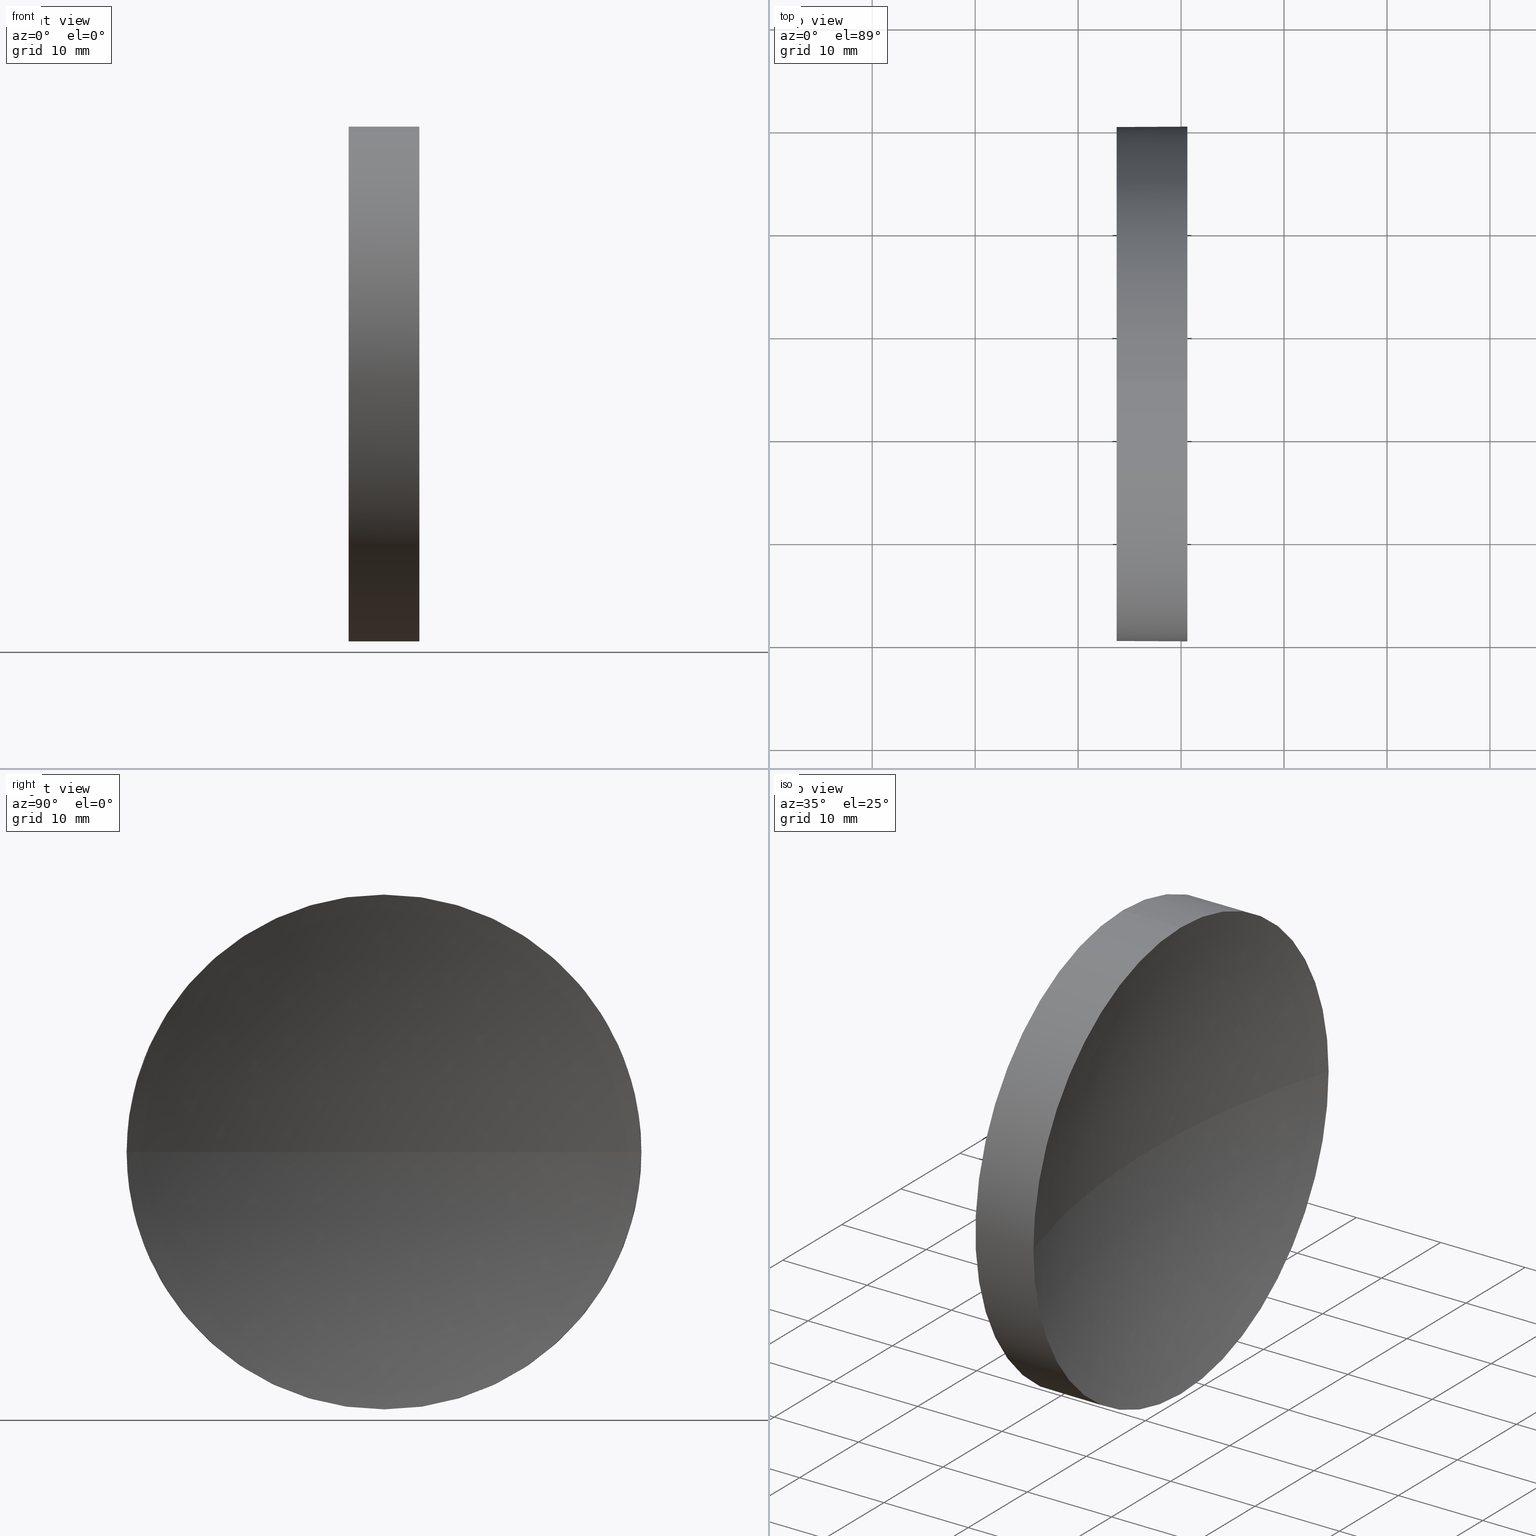
[diagram: canonical four-view strip — front | top / right | iso, engineering-drawing reading convention]
A machine part, canonical four-view strip (front | top / right | iso — engineering-drawing reading convention). The complete STEP part file that produces these views, byte-faithful:
ISO-10303-21;
HEADER;
FILE_DESCRIPTION (( 'STEP AP214' ),
    '1' );
FILE_NAME ('120057.STEP',
    '2019-06-18T01:41:22',
    ( '' ),
    ( '' ),
    'SwSTEP 2.0',
    'SolidWorks 2016',
    '' );
FILE_SCHEMA (( 'AUTOMOTIVE_DESIGN' ));
ENDSEC;

DATA;
#1 = PRODUCT_DEFINITION_CONTEXT ( 'detailed design', #56, 'design' ) ;
#2 = ORIENTED_EDGE ( 'NONE', *, *, #14, .F. ) ;
#3 = COLOUR_RGB ( '',1.000000000000000000, 1.000000000000000000, 1.000000000000000000 ) ;
#4 = EDGE_CURVE ( 'NONE', #29, #13, #57, .T. ) ;
#5 = DIRECTION ( 'NONE',  ( -1.000000000000000000, -0.0000000000000000000, -0.0000000000000000000 ) ) ;
#6 = DIRECTION ( 'NONE',  ( 0.0000000000000000000, 1.000000000000000000, 1.224646799147353000E-016 ) ) ;
#7 = DIRECTION ( 'NONE',  ( -1.000000000000000000, -0.0000000000000000000, -0.0000000000000000000 ) ) ;
#8 = MECHANICAL_DESIGN_GEOMETRIC_PRESENTATION_REPRESENTATION (  '', ( #58 ), #162 ) ;
#9 = DIRECTION ( 'NONE',  ( 0.0000000000000000000, 0.0000000000000000000, 1.000000000000000000 ) ) ;
#10 = ORIENTED_EDGE ( 'NONE', *, *, #45, .F. ) ;
#11 =( LENGTH_UNIT ( ) NAMED_UNIT ( * ) SI_UNIT ( .MILLI., .METRE. ) );
#12 =( NAMED_UNIT ( * ) SI_UNIT ( $, .STERADIAN. ) SOLID_ANGLE_UNIT ( ) );
#13 = VERTEX_POINT ( 'NONE', #123 ) ;
#14 = EDGE_CURVE ( 'NONE', #88, #55, #17, .T. ) ;
#15 = SURFACE_STYLE_FILL_AREA ( #70 ) ;
#16 = CARTESIAN_POINT ( 'NONE',  ( 113.7394371346435000, 65.15563045701519200, -24.99999999999999300 ) ) ;
#17 = LINE ( 'NONE', #110, #133 ) ;
#18 = CARTESIAN_POINT ( 'NONE',  ( 120.6125997378311500, 40.15563045701520700, -3.061616997868379500E-015 ) ) ;
#19 = CARTESIAN_POINT ( 'NONE',  ( 199.3594371346434900, 65.15563045701517800, 0.0000000000000000000 ) ) ;
#20 = VERTEX_POINT ( 'NONE', #65 ) ;
#21 = EDGE_CURVE ( 'NONE', #20, #175, #148, .T. ) ;
#22 = CARTESIAN_POINT ( 'NONE',  ( 120.6125997378311500, 90.15563045701516400, 0.0000000000000000000 ) ) ;
#23 = ADVANCED_FACE ( 'NONE', ( #129 ), #59, .F. ) ;
#24 = DIRECTION ( 'NONE',  ( -1.000000000000000000, -0.0000000000000000000, -0.0000000000000000000 ) ) ;
#25 = SHAPE_DEFINITION_REPRESENTATION ( #183, #173 ) ;
#26 = ORIENTED_EDGE ( 'NONE', *, *, #21, .F. ) ;
#27 = FILL_AREA_STYLE ('',( #100 ) ) ;
#28 = EDGE_CURVE ( 'NONE', #175, #13, #101, .T. ) ;
#29 = VERTEX_POINT ( 'NONE', #18 ) ;
#30 = AXIS2_PLACEMENT_3D ( 'NONE', #144, #126, #165 ) ;
#31 = ORIENTED_EDGE ( 'NONE', *, *, #178, .T. ) ;
#32 = AXIS2_PLACEMENT_3D ( 'NONE', #125, #33, #6 ) ;
#33 = DIRECTION ( 'NONE',  ( 0.0000000000000000000, 1.224646799147353200E-016, -1.000000000000000000 ) ) ;
#34 = CIRCLE ( 'NONE', #138, 24.99999999999999300 ) ;
#35 = EDGE_LOOP ( 'NONE', ( #137, #73, #78, #132, #105 ) ) ;
#36 = AXIS2_PLACEMENT_3D ( 'NONE', #86, #146, #49 ) ;
#37 = DIRECTION ( 'NONE',  ( -1.000000000000000000, -0.0000000000000000000, -0.0000000000000000000 ) ) ;
#38 = CARTESIAN_POINT ( 'NONE',  ( 105.6218371238301200, 65.15563045701519200, 0.0000000000000000000 ) ) ;
#39 = DIRECTION ( 'NONE',  ( 0.0000000000000000000, 0.0000000000000000000, 1.000000000000000000 ) ) ;
#40 = CARTESIAN_POINT ( 'NONE',  ( 120.6125997378311600, 65.15563045701519200, 0.0000000000000000000 ) ) ;
#41 = AXIS2_PLACEMENT_3D ( 'NONE', #113, #24, #127 ) ;
#42 = ORIENTED_EDGE ( 'NONE', *, *, #172, .F. ) ;
#43 =( GEOMETRIC_REPRESENTATION_CONTEXT ( 3 ) GLOBAL_UNCERTAINTY_ASSIGNED_CONTEXT ( ( #47 ) ) GLOBAL_UNIT_ASSIGNED_CONTEXT ( ( #130, #52, #156 ) ) REPRESENTATION_CONTEXT ( 'NONE', 'WORKASPACE' ) );
#44 = VECTOR ( 'NONE', #97, 1000.000000000000000 ) ;
#45 = EDGE_CURVE ( 'NONE', #55, #160, #121, .T. ) ;
#46 = DIRECTION ( 'NONE',  ( 0.0000000000000000000, 0.0000000000000000000, 1.000000000000000000 ) ) ;
#47 = UNCERTAINTY_MEASURE_WITH_UNIT (LENGTH_MEASURE( 1.000000000000000100E-005 ), #130, 'distance_accuracy_value', 'NONE');
#48 =( NAMED_UNIT ( * ) PLANE_ANGLE_UNIT ( ) SI_UNIT ( $, .RADIAN. ) );
#49 = DIRECTION ( 'NONE',  ( 0.0000000000000000000, 1.000000000000000000, 0.0000000000000000000 ) ) ;
#50 = CARTESIAN_POINT ( 'NONE',  ( 113.7394371346435000, 65.15563045701519200, 24.99999999999999300 ) ) ;
#51 = ORIENTED_EDGE ( 'NONE', *, *, #45, .T. ) ;
#52 =( NAMED_UNIT ( * ) PLANE_ANGLE_UNIT ( ) SI_UNIT ( $, .RADIAN. ) );
#53 = SURFACE_STYLE_USAGE ( .BOTH. , #111 ) ;
#54 = AXIS2_PLACEMENT_3D ( 'NONE', #19, #46, #108 ) ;
#55 = VERTEX_POINT ( 'NONE', #16 ) ;
#56 = APPLICATION_CONTEXT ( 'automotive_design' ) ;
#57 = CIRCLE ( 'NONE', #32, 82.62000000000001900 ) ;
#58 = STYLED_ITEM ( 'NONE', ( #90 ), #173 ) ;
#59 = SPHERICAL_SURFACE ( 'NONE', #92, 82.62000000000000500 ) ;
#60 = EDGE_CURVE ( 'NONE', #175, #88, #95, .T. ) ;
#61 = AXIS2_PLACEMENT_3D ( 'NONE', #38, #68, #39 ) ;
#62 = ORIENTED_EDGE ( 'NONE', *, *, #143, .F. ) ;
#63 = AXIS2_PLACEMENT_3D ( 'NONE', #40, #182, #87 ) ;
#64 = CLOSED_SHELL ( 'NONE', ( #164, #176, #23, #124, #141 ) ) ;
#65 = CARTESIAN_POINT ( 'NONE',  ( 120.6125997378311600, 65.15563045701519200, 24.99999999999998200 ) ) ;
#66 = PRESENTATION_LAYER_ASSIGNMENT (  '', '', ( #58 ) ) ;
#67 = UNCERTAINTY_MEASURE_WITH_UNIT (LENGTH_MEASURE( 1.000000000000000100E-005 ), #11, 'distance_accuracy_value', 'NONE');
#68 = DIRECTION ( 'NONE',  ( -1.000000000000000000, -0.0000000000000000000, -0.0000000000000000000 ) ) ;
#69 = CARTESIAN_POINT ( 'NONE',  ( 113.7394371346435000, 65.15563045701519200, 0.0000000000000000000 ) ) ;
#70 = FILL_AREA_STYLE ('',( #96 ) ) ;
#71 = SURFACE_STYLE_USAGE ( .BOTH. , #114 ) ;
#72 = AXIS2_PLACEMENT_3D ( 'NONE', #166, #174, #134 ) ;
#73 = ORIENTED_EDGE ( 'NONE', *, *, #14, .T. ) ;
#74 = AXIS2_PLACEMENT_3D ( 'NONE', #142, #5, #161 ) ;
#75 = CIRCLE ( 'NONE', #41, 24.99999999999998200 ) ;
#76 = MANIFOLD_SOLID_BREP ( '��ת1', #64 ) ;
#77 = FACE_OUTER_BOUND ( 'NONE', #140, .T. ) ;
#78 = ORIENTED_EDGE ( 'NONE', *, *, #178, .F. ) ;
#79 = STYLED_ITEM ( 'NONE', ( #186 ), #76 ) ;
#80 = CARTESIAN_POINT ( 'NONE',  ( 120.6125997378311600, 65.15563045701519200, -24.99999999999998200 ) ) ;
#81 = PRODUCT_DEFINITION ( 'δ֪', '', #158, #1 ) ;
#82 = FACE_OUTER_BOUND ( 'NONE', #35, .T. ) ;
#83 = ORIENTED_EDGE ( 'NONE', *, *, #28, .T. ) ;
#84 = MECHANICAL_DESIGN_GEOMETRIC_PRESENTATION_REPRESENTATION (  '', ( #79 ), #150 ) ;
#85 = CARTESIAN_POINT ( 'NONE',  ( 120.6125997378311600, 65.15563045701519200, 0.0000000000000000000 ) ) ;
#86 = CARTESIAN_POINT ( 'NONE',  ( 199.3594371346434900, 65.15563045701517800, 0.0000000000000000000 ) ) ;
#87 = DIRECTION ( 'NONE',  ( 0.0000000000000000000, 0.0000000000000000000, 1.000000000000000000 ) ) ;
#88 = VERTEX_POINT ( 'NONE', #80 ) ;
#89 = PRESENTATION_LAYER_ASSIGNMENT (  '', '', ( #79 ) ) ;
#90 = PRESENTATION_STYLE_ASSIGNMENT (( #53 ) ) ;
#91 = ORIENTED_EDGE ( 'NONE', *, *, #172, .T. ) ;
#92 = AXIS2_PLACEMENT_3D ( 'NONE', #153, #179, #139 ) ;
#93 = CYLINDRICAL_SURFACE ( 'NONE', #61, 24.99999999999998600 ) ;
#94 = EDGE_LOOP ( 'NONE', ( #2, #91, #109, #171, #10 ) ) ;
#95 = CIRCLE ( 'NONE', #63, 24.99999999999998200 ) ;
#96 = FILL_AREA_STYLE_COLOUR ( '', #163 ) ;
#97 = DIRECTION ( 'NONE',  ( -1.000000000000000000, -0.0000000000000000000, -0.0000000000000000000 ) ) ;
#98 = EDGE_LOOP ( 'NONE', ( #62, #135, #152, #26 ) ) ;
#99 = DIRECTION ( 'NONE',  ( -1.000000000000000000, -0.0000000000000000000, -0.0000000000000000000 ) ) ;
#100 = FILL_AREA_STYLE_COLOUR ( '', #3 ) ;
#101 = CIRCLE ( 'NONE', #54, 82.61999999999997600 ) ;
#102 = UNCERTAINTY_MEASURE_WITH_UNIT (LENGTH_MEASURE( 1.000000000000000100E-005 ), #145, 'distance_accuracy_value', 'NONE');
#103 = AXIS2_PLACEMENT_3D ( 'NONE', #69, #37, #112 ) ;
#104 = PRODUCT_RELATED_PRODUCT_CATEGORY ( 'part', '', ( #170 ) ) ;
#105 = ORIENTED_EDGE ( 'NONE', *, *, #21, .T. ) ;
#106 = SURFACE_STYLE_FILL_AREA ( #27 ) ;
#107 = CYLINDRICAL_SURFACE ( 'NONE', #131, 24.99999999999998600 ) ;
#108 = DIRECTION ( 'NONE',  ( 1.000000000000000000, 0.0000000000000000000, 0.0000000000000000000 ) ) ;
#109 = ORIENTED_EDGE ( 'NONE', *, *, #143, .T. ) ;
#110 = CARTESIAN_POINT ( 'NONE',  ( 105.6218371238301200, 65.15563045701519200, -24.99999999999998600 ) ) ;
#111 = SURFACE_SIDE_STYLE ('',( #106 ) ) ;
#112 = DIRECTION ( 'NONE',  ( 0.0000000000000000000, 0.0000000000000000000, 1.000000000000000000 ) ) ;
#113 = CARTESIAN_POINT ( 'NONE',  ( 120.6125997378311600, 65.15563045701519200, 0.0000000000000000000 ) ) ;
#114 = SURFACE_SIDE_STYLE ('',( #15 ) ) ;
#115 = FACE_OUTER_BOUND ( 'NONE', #94, .T. ) ;
#116 = ORIENTED_EDGE ( 'NONE', *, *, #60, .F. ) ;
#117 =( NAMED_UNIT ( * ) PLANE_ANGLE_UNIT ( ) SI_UNIT ( $, .RADIAN. ) );
#118 = AXIS2_PLACEMENT_3D ( 'NONE', #85, #7, #180 ) ;
#119 = EDGE_CURVE ( 'NONE', #20, #160, #136, .T. ) ;
#120 = FACE_OUTER_BOUND ( 'NONE', #98, .T. ) ;
#121 = CIRCLE ( 'NONE', #103, 24.99999999999999300 ) ;
#122 = ORIENTED_EDGE ( 'NONE', *, *, #4, .F. ) ;
#123 = CARTESIAN_POINT ( 'NONE',  ( 116.7394371346435000, 65.15563045701517800, 0.0000000000000000000 ) ) ;
#124 = ADVANCED_FACE ( 'NONE', ( #115 ), #93, .T. ) ;
#125 = CARTESIAN_POINT ( 'NONE',  ( 199.3594371346434900, 65.15563045701517800, 0.0000000000000000000 ) ) ;
#126 = DIRECTION ( 'NONE',  ( 1.000000000000000000, 0.0000000000000000000, 0.0000000000000000000 ) ) ;
#127 = DIRECTION ( 'NONE',  ( 0.0000000000000000000, 0.0000000000000000000, 1.000000000000000000 ) ) ;
#128 = CARTESIAN_POINT ( 'NONE',  ( 113.7394371346435000, 65.15563045701519200, 0.0000000000000000000 ) ) ;
#129 = FACE_OUTER_BOUND ( 'NONE', #167, .T. ) ;
#130 =( LENGTH_UNIT ( ) NAMED_UNIT ( * ) SI_UNIT ( .MILLI., .METRE. ) );
#131 = AXIS2_PLACEMENT_3D ( 'NONE', #147, #99, #181 ) ;
#132 = ORIENTED_EDGE ( 'NONE', *, *, #119, .F. ) ;
#133 = VECTOR ( 'NONE', #151, 1000.000000000000000 ) ;
#134 = DIRECTION ( 'NONE',  ( 1.000000000000000000, 0.0000000000000000000, 0.0000000000000000000 ) ) ;
#135 = ORIENTED_EDGE ( 'NONE', *, *, #4, .T. ) ;
#136 = LINE ( 'NONE', #184, #44 ) ;
#137 = ORIENTED_EDGE ( 'NONE', *, *, #60, .T. ) ;
#138 = AXIS2_PLACEMENT_3D ( 'NONE', #128, #155, #9 ) ;
#139 = DIRECTION ( 'NONE',  ( 0.0000000000000000000, 1.000000000000000000, 0.0000000000000000000 ) ) ;
#140 = EDGE_LOOP ( 'NONE', ( #31, #51 ) ) ;
#141 = ADVANCED_FACE ( 'NONE', ( #77 ), #168, .F. ) ;
#142 = CARTESIAN_POINT ( 'NONE',  ( 120.6125997378311600, 65.15563045701519200, 0.0000000000000000000 ) ) ;
#143 = EDGE_CURVE ( 'NONE', #29, #20, #75, .T. ) ;
#144 = CARTESIAN_POINT ( 'NONE',  ( 113.7394371346435000, 65.15563045701519200, 0.0000000000000000000 ) ) ;
#145 =( LENGTH_UNIT ( ) NAMED_UNIT ( * ) SI_UNIT ( .MILLI., .METRE. ) );
#146 = DIRECTION ( 'NONE',  ( 0.0000000000000000000, 0.0000000000000000000, -1.000000000000000000 ) ) ;
#147 = CARTESIAN_POINT ( 'NONE',  ( 105.6218371238301200, 65.15563045701519200, 0.0000000000000000000 ) ) ;
#148 = CIRCLE ( 'NONE', #74, 24.99999999999998200 ) ;
#149 = CIRCLE ( 'NONE', #118, 24.99999999999998200 ) ;
#150 =( GEOMETRIC_REPRESENTATION_CONTEXT ( 3 ) GLOBAL_UNCERTAINTY_ASSIGNED_CONTEXT ( ( #102 ) ) GLOBAL_UNIT_ASSIGNED_CONTEXT ( ( #145, #48, #154 ) ) REPRESENTATION_CONTEXT ( 'NONE', 'WORKASPACE' ) );
#151 = DIRECTION ( 'NONE',  ( -1.000000000000000000, -0.0000000000000000000, -0.0000000000000000000 ) ) ;
#152 = ORIENTED_EDGE ( 'NONE', *, *, #28, .F. ) ;
#153 = CARTESIAN_POINT ( 'NONE',  ( 199.3594371346434900, 65.15563045701517800, 0.0000000000000000000 ) ) ;
#154 =( NAMED_UNIT ( * ) SI_UNIT ( $, .STERADIAN. ) SOLID_ANGLE_UNIT ( ) );
#155 = DIRECTION ( 'NONE',  ( -1.000000000000000000, -0.0000000000000000000, -0.0000000000000000000 ) ) ;
#156 =( NAMED_UNIT ( * ) SI_UNIT ( $, .STERADIAN. ) SOLID_ANGLE_UNIT ( ) );
#157 = PRODUCT_CONTEXT ( 'NONE', #169, 'mechanical' ) ;
#158 = PRODUCT_DEFINITION_FORMATION_WITH_SPECIFIED_SOURCE ( '�κ�', '', #170, .NOT_KNOWN. ) ;
#159 = APPLICATION_PROTOCOL_DEFINITION ( 'draft international standard', 'automotive_design', 1998, #56 ) ;
#160 = VERTEX_POINT ( 'NONE', #50 ) ;
#161 = DIRECTION ( 'NONE',  ( 0.0000000000000000000, 0.0000000000000000000, 1.000000000000000000 ) ) ;
#162 =( GEOMETRIC_REPRESENTATION_CONTEXT ( 3 ) GLOBAL_UNCERTAINTY_ASSIGNED_CONTEXT ( ( #67 ) ) GLOBAL_UNIT_ASSIGNED_CONTEXT ( ( #11, #117, #12 ) ) REPRESENTATION_CONTEXT ( 'NONE', 'WORKASPACE' ) );
#163 = COLOUR_RGB ( '',1.000000000000000000, 1.000000000000000000, 1.000000000000000000 ) ;
#164 = ADVANCED_FACE ( 'NONE', ( #82 ), #107, .T. ) ;
#165 = DIRECTION ( 'NONE',  ( 0.0000000000000000000, 0.0000000000000000000, -1.000000000000000000 ) ) ;
#166 = CARTESIAN_POINT ( 'NONE',  ( 0.0000000000000000000, 0.0000000000000000000, 0.0000000000000000000 ) ) ;
#167 = EDGE_LOOP ( 'NONE', ( #122, #42, #116, #83 ) ) ;
#168 = PLANE ( 'NONE',  #30 ) ;
#169 = APPLICATION_CONTEXT ( 'automotive_design' ) ;
#170 = PRODUCT ( '120057', '120057', '', ( #157 ) ) ;
#171 = ORIENTED_EDGE ( 'NONE', *, *, #119, .T. ) ;
#172 = EDGE_CURVE ( 'NONE', #88, #29, #149, .T. ) ;
#173 = ADVANCED_BREP_SHAPE_REPRESENTATION ( '120057', ( #76, #72 ), #43 ) ;
#174 = DIRECTION ( 'NONE',  ( 0.0000000000000000000, 0.0000000000000000000, 1.000000000000000000 ) ) ;
#175 = VERTEX_POINT ( 'NONE', #22 ) ;
#176 = ADVANCED_FACE ( 'NONE', ( #120 ), #177, .F. ) ;
#177 = SPHERICAL_SURFACE ( 'NONE', #36, 82.62000000000000500 ) ;
#178 = EDGE_CURVE ( 'NONE', #160, #55, #34, .T. ) ;
#179 = DIRECTION ( 'NONE',  ( 0.0000000000000000000, 0.0000000000000000000, -1.000000000000000000 ) ) ;
#180 = DIRECTION ( 'NONE',  ( 0.0000000000000000000, 0.0000000000000000000, 1.000000000000000000 ) ) ;
#181 = DIRECTION ( 'NONE',  ( 0.0000000000000000000, 0.0000000000000000000, 1.000000000000000000 ) ) ;
#182 = DIRECTION ( 'NONE',  ( -1.000000000000000000, -0.0000000000000000000, -0.0000000000000000000 ) ) ;
#183 = PRODUCT_DEFINITION_SHAPE ( 'NONE', 'NONE',  #81 ) ;
#184 = CARTESIAN_POINT ( 'NONE',  ( 105.6218371238301200, 65.15563045701519200, 24.99999999999998600 ) ) ;
#185 = APPLICATION_PROTOCOL_DEFINITION ( 'draft international standard', 'automotive_design', 1998, #169 ) ;
#186 = PRESENTATION_STYLE_ASSIGNMENT (( #71 ) ) ;
ENDSEC;
END-ISO-10303-21;
